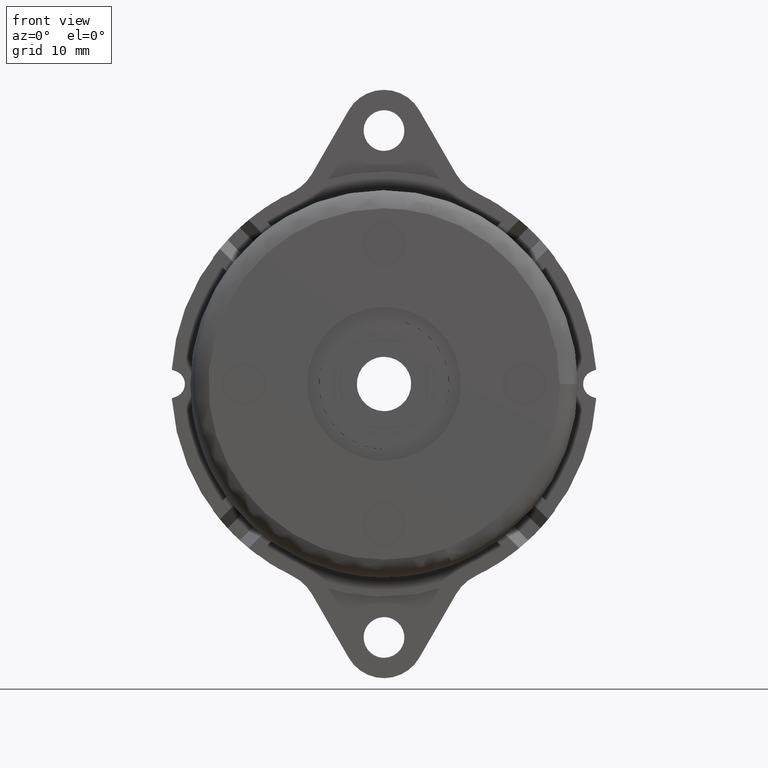
[diagram: clean part render]
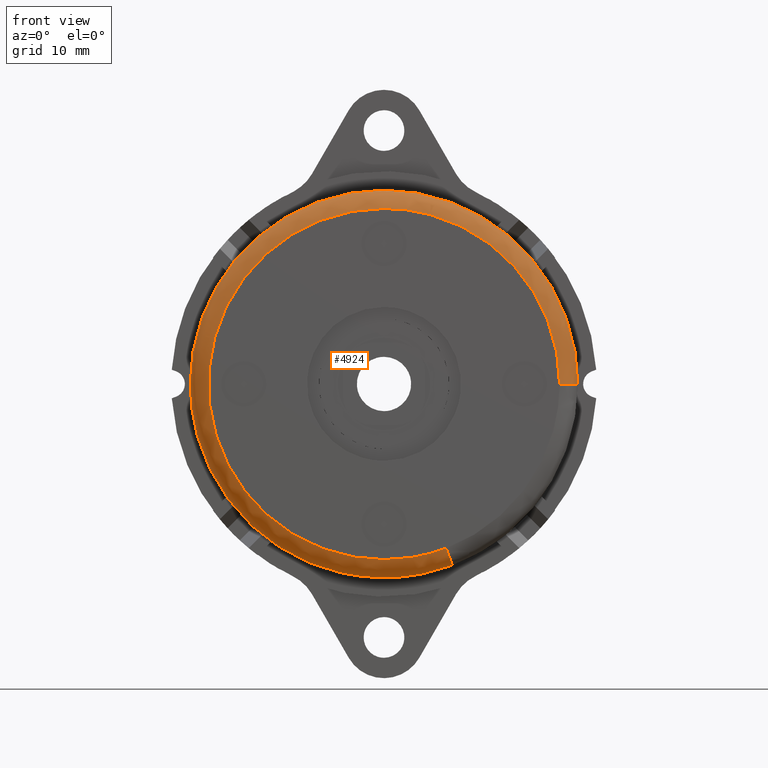
[diagram: same view with one face highlighted and labeled with its STEP entity id]
A machine part, front view. The second image highlights one B-rep face of the part: STEP entity #4924.
In plain terms, the highlighted face is a freeform B-spline surface patch.
Its self-contained STEP definition (entity closure, byte-faithful):
#3531=CARTESIAN_POINT('',(0.0,-8.300004999999999,-21.399999999999999));
#3532=VERTEX_POINT('',#3531);
#3533=CARTESIAN_POINT('',(-4.938737999895590,-8.300005000006948,-20.822316561036448));
#3534=VERTEX_POINT('',#3533);
#3535=CARTESIAN_POINT('',(0.0,-8.300004999999999,-21.399999999999999));
#3536=CARTESIAN_POINT('',(-2.503154772311081,-8.300005000000002,-21.399999999999999));
#3537=CARTESIAN_POINT('',(-4.938737999895589,-8.300005000006948,-20.822316561036448));
#3545=(BOUNDED_CURVE()B_SPLINE_CURVE(2,(#3535,#3536,#3537),.UNSPECIFIED.,.F.,.U.)B_SPLINE_CURVE_WITH_KNOTS((3,3),(0.500000000000000,0.539444005086203),.UNSPECIFIED.)CURVE()GEOMETRIC_REPRESENTATION_ITEM()RATIONAL_B_SPLINE_CURVE((1.0,0.953788473549632,0.922159088574060))REPRESENTATION_ITEM(''));
#3546=EDGE_CURVE('',#3532,#3534,#3545,.T.);
#4192=CARTESIAN_POINT('',(-21.399875559891559,-8.300005000005893,-0.072979589982576));
#4193=VERTEX_POINT('',#4192);
#4199=CARTESIAN_POINT('',(0.0,-8.300004999999999,21.399999999999999));
#4200=VERTEX_POINT('',#4199);
#4201=CARTESIAN_POINT('',(-21.399875559891559,-8.300005000005893,-0.072979589982576));
#4202=CARTESIAN_POINT('',(-21.400000000000002,-8.300004999999999,-0.036489901084929));
#4203=CARTESIAN_POINT('',(-21.399999999999999,-8.300004999999999,1.685221E-016));
#4204=CARTESIAN_POINT('',(-21.400000000000002,-8.300004999999999,21.400000000000002));
#4205=CARTESIAN_POINT('',(0.0,-8.300004999999999,21.399999999999999));
#4213=(BOUNDED_CURVE()B_SPLINE_CURVE(2,(#4201,#4202,#4203,#4204,#4205),.UNSPECIFIED.,.F.,.U.)B_SPLINE_CURVE_WITH_KNOTS((3,2,3),(0.749397569030809,0.750000000000000,1.0),.UNSPECIFIED.)CURVE()GEOMETRIC_REPRESENTATION_ITEM()RATIONAL_B_SPLINE_CURVE((0.998591817961188,0.999294208217283,1.0,0.707106781186548,1.0))REPRESENTATION_ITEM(''));
#4214=EDGE_CURVE('',#4193,#4200,#4213,.T.);
#4216=CARTESIAN_POINT('',(21.399999999999999,-8.300005000321981,2.541729E-015));
#4217=VERTEX_POINT('',#4216);
#4218=CARTESIAN_POINT('',(0.0,-8.300004999999999,21.399999999999999));
#4219=CARTESIAN_POINT('',(21.400000000000006,-8.300004999999999,21.399999999999991));
#4220=CARTESIAN_POINT('',(21.399999999999999,-8.300005000321981,2.541729E-015));
#4228=(BOUNDED_CURVE()B_SPLINE_CURVE(2,(#4218,#4219,#4220),.UNSPECIFIED.,.F.,.U.)B_SPLINE_CURVE_WITH_KNOTS((3,3),(0.0,0.250000000000000),.UNSPECIFIED.)CURVE()GEOMETRIC_REPRESENTATION_ITEM()RATIONAL_B_SPLINE_CURVE((1.0,0.707106781186547,1.0))REPRESENTATION_ITEM(''));
#4229=EDGE_CURVE('',#4200,#4217,#4228,.T.);
#4231=CARTESIAN_POINT('',(7.560662086528600,-8.300005000323973,-20.019899820262061));
#4232=VERTEX_POINT('',#4231);
#4246=CARTESIAN_POINT('',(7.560662086528600,-8.300005000323973,-20.019899820262069));
#4247=CARTESIAN_POINT('',(3.906290680418759,-8.300004999999999,-21.400000000000006));
#4248=CARTESIAN_POINT('',(0.0,-8.300004999999999,-21.399999999999999));
#4256=(BOUNDED_CURVE()B_SPLINE_CURVE(2,(#4246,#4247,#4248),.UNSPECIFIED.,.F.,.U.)B_SPLINE_CURVE_WITH_KNOTS((3,3),(0.439999999999961,0.500000000000000),.UNSPECIFIED.)CURVE()GEOMETRIC_REPRESENTATION_ITEM()RATIONAL_B_SPLINE_CURVE((0.893152553776805,0.929705627484726,1.0))REPRESENTATION_ITEM(''));
#4257=EDGE_CURVE('',#4232,#3532,#4256,.T.);
#4372=CARTESIAN_POINT('',(-4.938737999895590,-8.300005000006950,-20.822316561036441));
#4373=CARTESIAN_POINT('',(-21.342382856232319,-8.300005000000001,-16.931620540201273));
#4374=CARTESIAN_POINT('',(-21.399875559891559,-8.300005000005893,-0.072979589982576));
#4382=(BOUNDED_CURVE()B_SPLINE_CURVE(2,(#4372,#4373,#4374),.UNSPECIFIED.,.F.,.U.)B_SPLINE_CURVE_WITH_KNOTS((3,3),(0.539444005086203,0.749397569030809),.UNSPECIFIED.)CURVE()GEOMETRIC_REPRESENTATION_ITEM()RATIONAL_B_SPLINE_CURVE((0.922159088574059,0.753801385382294,0.998591817961188))REPRESENTATION_ITEM(''));
#4383=EDGE_CURVE('',#3534,#4193,#4382,.T.);
#4807=CARTESIAN_POINT('',(6.805054432051298,-10.295189635628260,-18.019124045219630));
#4808=CARTESIAN_POINT('',(3.515898528915689,-10.295189635628260,-19.261297910062897));
#4809=CARTESIAN_POINT('',(2.358751E-015,-10.295189635628260,-19.261297910062900));
#4810=CARTESIAN_POINT('',(-19.261297910062893,-10.295189635628260,-19.261297910062893));
#4811=CARTESIAN_POINT('',(-19.261297910062900,-10.295189635628260,-3.369604E-015));
#4812=CARTESIAN_POINT('',(-19.261297910062893,-10.295189635628260,19.261297910062893));
#4813=CARTESIAN_POINT('',(-4.717502E-015,-10.295189635628260,19.261297910062900));
#4814=CARTESIAN_POINT('',(19.261297910062893,-10.295189635628260,19.261297910062911));
#4815=CARTESIAN_POINT('',(19.261297910062900,-10.295189635628260,6.065399E-015));
#4816=CARTESIAN_POINT('',(7.615593031270024,-10.454677469572998,-20.165351633638526));
#4817=CARTESIAN_POINT('',(3.934671295111398,-10.454677469572996,-21.555478740362428));
#4818=CARTESIAN_POINT('',(2.639698E-015,-10.454677469572996,-21.555478740362421));
#4819=CARTESIAN_POINT('',(-21.555478740362418,-10.454677469572996,-21.555478740362428));
#4820=CARTESIAN_POINT('',(-21.555478740362421,-10.454677469572996,-3.791024E-015));
#4821=CARTESIAN_POINT('',(-21.555478740362432,-10.454677469572996,21.555478740362418));
#4822=CARTESIAN_POINT('',(-5.279395E-015,-10.454677469572996,21.555478740362421));
#4823=CARTESIAN_POINT('',(21.555478740362418,-10.454677469572996,21.555478740362432));
#4824=CARTESIAN_POINT('',(21.555478740362421,-10.454677469572996,6.767766E-015));
#4825=CARTESIAN_POINT('',(7.558942425902922,-8.160556468447727,-20.015346325739916));
#4826=CARTESIAN_POINT('',(3.905402200784354,-8.160556468447727,-21.395132603875712));
#4827=CARTESIAN_POINT('',(2.620062E-015,-8.160556468447730,-21.395132603875716));
#4828=CARTESIAN_POINT('',(-21.395132603875705,-8.160556468447728,-21.395132603875719));
#4829=CARTESIAN_POINT('',(-21.395132603875716,-8.160556468447730,-3.761570E-015));
#4830=CARTESIAN_POINT('',(-21.395132603875719,-8.160556468447728,21.395132603875705));
#4831=CARTESIAN_POINT('',(-5.240123E-015,-8.160556468447730,21.395132603875716));
#4832=CARTESIAN_POINT('',(21.395132603875705,-8.160556468447728,21.395132603875719));
#4833=CARTESIAN_POINT('',(21.395132603875716,-8.160556468447730,6.718676E-015));
#4841=(BOUNDED_SURFACE()B_SPLINE_SURFACE(2,2,((#4807,#4816,#4825),(#4808,#4817,#4826),(#4809,#4818,#4827),(#4810,#4819,#4828),(#4811,#4820,#4829),(#4812,#4821,#4830),(#4813,#4822,#4831),(#4814,#4823,#4832),(#4815,#4824,#4833)),.UNSPECIFIED.,.F.,.F.,.U.)B_SPLINE_SURFACE_WITH_KNOTS((3,2,2,2,3),(3,3),(0.0,8.507667929564278,43.956284302748742,79.404900675933192,114.853517049117600),(0.0,3.644741986515160),.UNSPECIFIED.)GEOMETRIC_REPRESENTATION_ITEM()RATIONAL_B_SPLINE_SURFACE(((0.818098104369791,0.535367090391634,0.813566386755873),(0.851579507051655,0.557277471359731,0.846862324807686),(0.915966819901392,0.599412819375302,0.910892974907326),(0.647686349694152,0.423848869310423,0.644098599492158),(0.915966819901392,0.599412819375302,0.910892974907326),(0.647686349694152,0.423848869310423,0.644098599492158),(0.915966819901392,0.599412819375302,0.910892974907326),(0.647686349694152,0.423848869310423,0.644098599492158),(0.915966819901392,0.599412819375302,0.910892974907326)))REPRESENTATION_ITEM('')SURFACE());
#4842=CARTESIAN_POINT('',(0.0,-10.300005000000001,-19.399999999999999));
#4843=VERTEX_POINT('',#4842);
#4844=CARTESIAN_POINT('',(6.854058153978697,-10.300005000000001,-18.148881147383609));
#4845=VERTEX_POINT('',#4844);
#4846=CARTESIAN_POINT('',(0.0,-10.300005000000001,-19.399999999999999));
#4847=CARTESIAN_POINT('',(3.541216785099254,-10.300004999999999,-19.400000000000013));
#4848=CARTESIAN_POINT('',(6.854058153978697,-10.300004999999999,-18.148881147383616));
#4856=(BOUNDED_CURVE()B_SPLINE_CURVE(2,(#4846,#4847,#4848),.UNSPECIFIED.,.F.,.U.)B_SPLINE_CURVE_WITH_KNOTS((3,3),(0.500000000000000,0.560000000000775),.UNSPECIFIED.)CURVE()GEOMETRIC_REPRESENTATION_ITEM()RATIONAL_B_SPLINE_CURVE((1.0,0.929705627483863,0.893152553775908))REPRESENTATION_ITEM(''));
#4857=EDGE_CURVE('',#4843,#4845,#4856,.T.);
#4858=ORIENTED_EDGE('',*,*,#4857,.F.);
#4859=CARTESIAN_POINT('',(0.0,-10.300005000000001,19.399999999999999));
#4860=VERTEX_POINT('',#4859);
#4861=CARTESIAN_POINT('',(0.0,-10.300005000000001,19.399999999999999));
#4862=CARTESIAN_POINT('',(-19.400000000000009,-10.300004999999999,19.400000000000009));
#4863=CARTESIAN_POINT('',(-19.399999999999999,-10.300005000000001,1.685221E-016));
#4864=CARTESIAN_POINT('',(-19.400000000000009,-10.300004999999999,-19.400000000000009));
#4865=CARTESIAN_POINT('',(0.0,-10.300005000000001,-19.399999999999999));
#4873=(BOUNDED_CURVE()B_SPLINE_CURVE(2,(#4861,#4862,#4863,#4864,#4865),.UNSPECIFIED.,.F.,.U.)B_SPLINE_CURVE_WITH_KNOTS((3,2,3),(0.0,0.250000000000000,0.500000000000000),.UNSPECIFIED.)CURVE()GEOMETRIC_REPRESENTATION_ITEM()RATIONAL_B_SPLINE_CURVE((1.0,0.707106781186548,1.0,0.707106781186548,1.0))REPRESENTATION_ITEM(''));
#4874=EDGE_CURVE('',#4860,#4843,#4873,.T.);
#4875=ORIENTED_EDGE('',*,*,#4874,.F.);
#4876=CARTESIAN_POINT('',(19.400000000278212,-10.300005000000001,7.708640E-016));
#4877=VERTEX_POINT('',#4876);
#4878=CARTESIAN_POINT('',(19.400000000278215,-10.300005000000002,7.708640E-016));
#4879=CARTESIAN_POINT('',(19.399999999999991,-10.300004999999999,19.400000000000009));
#4880=CARTESIAN_POINT('',(0.0,-10.300005000000001,19.399999999999999));
#4888=(BOUNDED_CURVE()B_SPLINE_CURVE(2,(#4878,#4879,#4880),.UNSPECIFIED.,.F.,.U.)B_SPLINE_CURVE_WITH_KNOTS((3,3),(0.750000000000000,1.0),.UNSPECIFIED.)CURVE()GEOMETRIC_REPRESENTATION_ITEM()RATIONAL_B_SPLINE_CURVE((1.000000000000000,0.707106781186548,1.0))REPRESENTATION_ITEM(''));
#4889=EDGE_CURVE('',#4877,#4860,#4888,.T.);
#4890=ORIENTED_EDGE('',*,*,#4889,.F.);
#4891=CARTESIAN_POINT('',(19.400000000278215,-10.300004999999999,7.708640E-016));
#4892=CARTESIAN_POINT('',(21.399999999356037,-10.300004999443575,6.622634E-016));
#4893=CARTESIAN_POINT('',(21.400000000000006,-8.300005000321981,2.541729E-015));
#4901=(BOUNDED_CURVE()B_SPLINE_CURVE(2,(#4891,#4892,#4893),.UNSPECIFIED.,.F.,.U.)B_SPLINE_CURVE_WITH_KNOTS((3,3),(-1.736413120784230,-0.276558718346740),.UNSPECIFIED.)CURVE()GEOMETRIC_REPRESENTATION_ITEM()RATIONAL_B_SPLINE_CURVE((0.888510408959248,0.626638727347748,0.883897567021826))REPRESENTATION_ITEM(''));
#4902=EDGE_CURVE('',#4877,#4217,#4901,.T.);
#4903=ORIENTED_EDGE('',*,*,#4902,.T.);
#4904=ORIENTED_EDGE('',*,*,#4229,.F.);
#4905=ORIENTED_EDGE('',*,*,#4214,.F.);
#4906=ORIENTED_EDGE('',*,*,#4383,.F.);
#4907=ORIENTED_EDGE('',*,*,#3546,.F.);
#4908=ORIENTED_EDGE('',*,*,#4257,.F.);
#4909=CARTESIAN_POINT('',(6.854058153978697,-10.300004999999997,-18.148881147383605));
#4910=CARTESIAN_POINT('',(7.560662086297219,-10.300004995877407,-20.019899819656825));
#4911=CARTESIAN_POINT('',(7.560662086528601,-8.300005000323973,-20.019899820262065));
#4919=(BOUNDED_CURVE()B_SPLINE_CURVE(2,(#4909,#4910,#4911),.UNSPECIFIED.,.F.,.U.)B_SPLINE_CURVE_WITH_KNOTS((3,3),(-1.736413118938805,-0.276558718348792),.UNSPECIFIED.)CURVE()GEOMETRIC_REPRESENTATION_ITEM()RATIONAL_B_SPLINE_CURVE((0.793575340227936,0.559683979916904,0.789455369262045))REPRESENTATION_ITEM(''));
#4920=EDGE_CURVE('',#4845,#4232,#4919,.T.);
#4921=ORIENTED_EDGE('',*,*,#4920,.F.);
#4922=EDGE_LOOP('',(#4858,#4875,#4890,#4903,#4904,#4905,#4906,#4907,#4908,#4921));
#4923=FACE_OUTER_BOUND('',#4922,.T.);
#4924=ADVANCED_FACE('',(#4923),#4841,.T.);